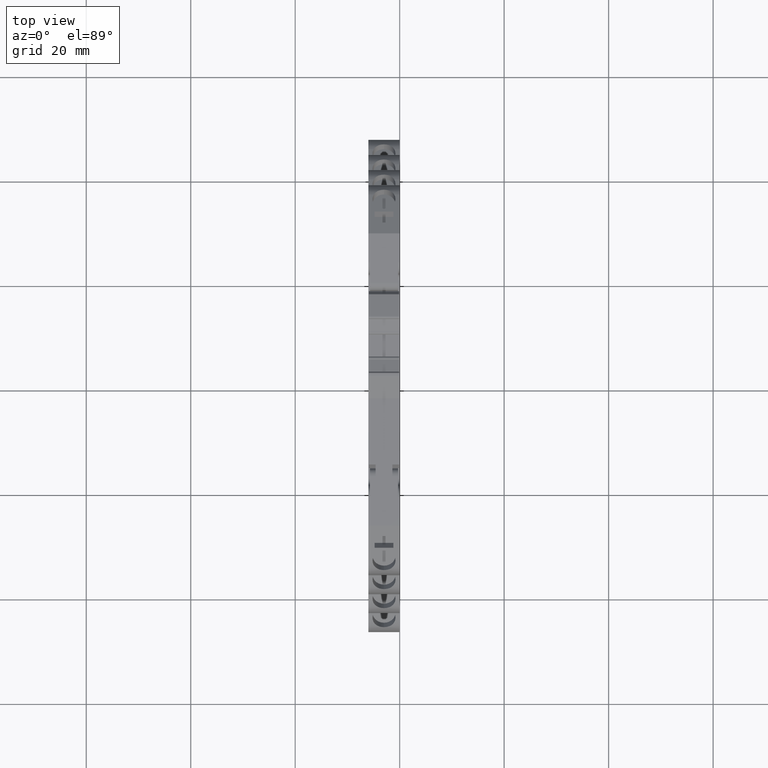
[diagram: clean part render]
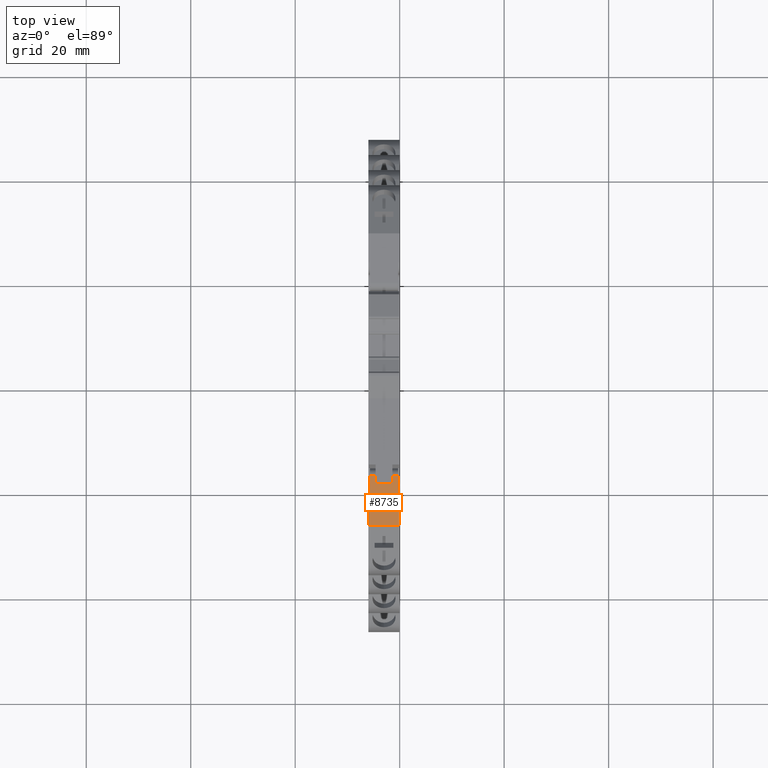
[diagram: same view with one face highlighted and labeled with its STEP entity id]
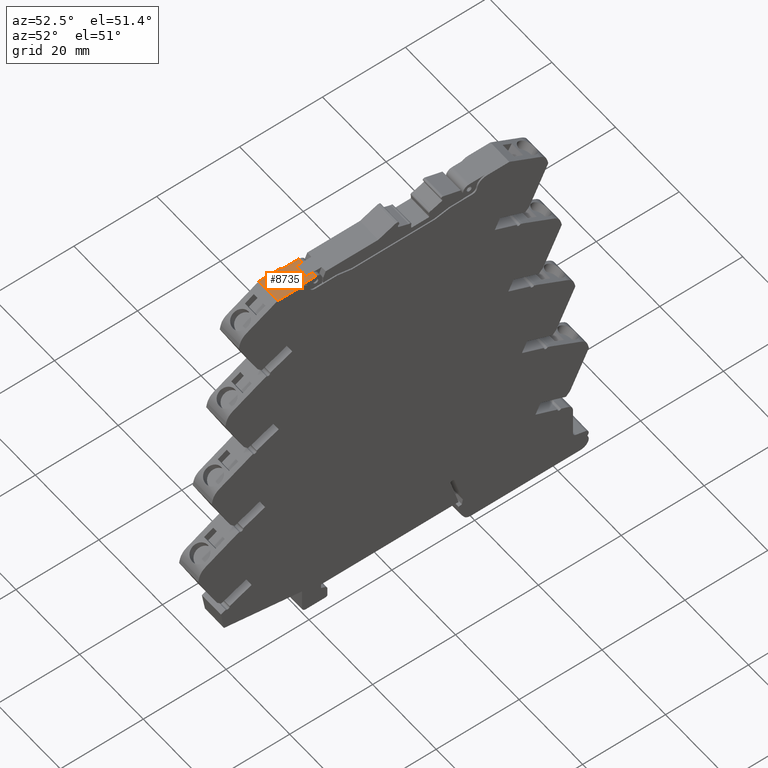
[diagram: same view with one face highlighted and labeled with its STEP entity id]
A machine part, top view. The second image highlights one B-rep face of the part: STEP entity #8735.
A second angle (auxiliary view) of the same face is appended — the face is thin or edge-on in the first view.
In plain terms, the highlighted planar face has unit normal (0, 0, -1).
Its self-contained STEP definition (entity closure, byte-faithful):
#4 = VECTOR ( 'NONE', #2063, 39.37007874015748143 ) ;
#26 = ORIENTED_EDGE ( 'NONE', *, *, #8177, .T. ) ;
#136 = EDGE_LOOP ( 'NONE', ( #7938, #1107, #9818, #3303, #3587, #3385, #26, #5512, #526, #2561, #1645, #9049 ) ) ;
#150 = EDGE_CURVE ( 'NONE', #2100, #6189, #8133, .T. ) ;
#285 = EDGE_CURVE ( 'NONE', #9698, #2100, #6065, .T. ) ;
#308 = CARTESIAN_POINT ( 'NONE',  ( -0.2234251968503937202, -0.8695884934271870259, 3.740177165354330757 ) ) ;
#426 = CARTESIAN_POINT ( 'NONE',  ( -0.2234251968503937202, -1.084904509595696842, 3.740177165354330757 ) ) ;
#452 = DIRECTION ( 'NONE',  ( -1.000000000000000000, -0.000000000000000000, -0.000000000000000000 ) ) ;
#518 = DIRECTION ( 'NONE',  ( 0.000000000000000000, -1.000000000000000000, 0.000000000000000000 ) ) ;
#526 = ORIENTED_EDGE ( 'NONE', *, *, #285, .F. ) ;
#539 = CARTESIAN_POINT ( 'NONE',  ( -0.2362204724409449064, -1.084904509595696842, 3.740177165354330757 ) ) ;
#587 = CARTESIAN_POINT ( 'NONE',  ( -0.2234251968503937202, -0.7123228346456693671, 3.740177165354330757 ) ) ;
#604 = CARTESIAN_POINT ( 'NONE',  ( 0.000000000000000000, -1.084904509595696842, 3.740177165354330757 ) ) ;
#933 = CARTESIAN_POINT ( 'NONE',  ( -0.2362204724409449064, -0.8695884935375591818, 3.740177165354330757 ) ) ;
#1041 = DIRECTION ( 'NONE',  ( 1.000000000000000000, 0.000000000000000000, 0.000000000000000000 ) ) ;
#1107 = ORIENTED_EDGE ( 'NONE', *, *, #5085, .F. ) ;
#1327 = VERTEX_POINT ( 'NONE', #9286 ) ;
#1357 = CARTESIAN_POINT ( 'NONE',  ( -0.01279527559055118092, -1.084904509595696842, 3.740177165354330757 ) ) ;
#1613 = VECTOR ( 'NONE', #2665, 39.37007874015748143 ) ;
#1645 = ORIENTED_EDGE ( 'NONE', *, *, #5849, .T. ) ;
#1669 = VECTOR ( 'NONE', #6688, 39.37007874015748143 ) ;
#1793 = CARTESIAN_POINT ( 'NONE',  ( -0.2362204724409449064, -0.8695884935375591818, 3.740177165354330757 ) ) ;
#1968 = VECTOR ( 'NONE', #9365, 39.37007874015748143 ) ;
#2063 = DIRECTION ( 'NONE',  ( -0.000000000000000000, 1.000000000000000000, -0.000000000000000000 ) ) ;
#2083 = EDGE_CURVE ( 'NONE', #5910, #2524, #9682, .T. ) ;
#2100 = VERTEX_POINT ( 'NONE', #2728 ) ;
#2338 = VERTEX_POINT ( 'NONE', #2366 ) ;
#2366 = CARTESIAN_POINT ( 'NONE',  ( -0.05511811023622047168, -0.7711023622047243897, 3.740177165354330757 ) ) ;
#2470 = VECTOR ( 'NONE', #8959, 39.37007874015748143 ) ;
#2524 = VERTEX_POINT ( 'NONE', #308 ) ;
#2551 = LINE ( 'NONE', #5740, #2470 ) ;
#2561 = ORIENTED_EDGE ( 'NONE', *, *, #4672, .F. ) ;
#2568 = LINE ( 'NONE', #6497, #1613 ) ;
#2600 = CARTESIAN_POINT ( 'NONE',  ( -0.1811023622047244208, 0.000000000000000000, 3.740177165354330757 ) ) ;
#2665 = DIRECTION ( 'NONE',  ( -0.000000000000000000, 1.000000000000000000, -0.000000000000000000 ) ) ;
#2728 = CARTESIAN_POINT ( 'NONE',  ( -0.01279527559055118092, -0.8695884934271870259, 3.740177165354330757 ) ) ;
#2808 = CARTESIAN_POINT ( 'NONE',  ( -0.2362204724409449064, -1.084904509595696842, 3.740177165354330757 ) ) ;
#2834 = VECTOR ( 'NONE', #1041, 39.37007874015748143 ) ;
#2959 = DIRECTION ( 'NONE',  ( -0.000000000000000000, 1.000000000000000000, -0.000000000000000000 ) ) ;
#3246 = CARTESIAN_POINT ( 'NONE',  ( -0.2362204724409449064, -0.8695884934271870259, 3.740177165354330757 ) ) ;
#3303 = ORIENTED_EDGE ( 'NONE', *, *, #2083, .F. ) ;
#3322 = VECTOR ( 'NONE', #2959, 39.37007874015748143 ) ;
#3385 = ORIENTED_EDGE ( 'NONE', *, *, #4950, .F. ) ;
#3587 = ORIENTED_EDGE ( 'NONE', *, *, #3591, .F. ) ;
#3591 = EDGE_CURVE ( 'NONE', #5409, #5910, #2568, .T. ) ;
#3688 = VERTEX_POINT ( 'NONE', #9779 ) ;
#3716 = DIRECTION ( 'NONE',  ( 0.000000000000000000, 0.000000000000000000, -1.000000000000000000 ) ) ;
#3792 = DIRECTION ( 'NONE',  ( 1.000000000000000000, 0.000000000000000000, 0.000000000000000000 ) ) ;
#3927 = LINE ( 'NONE', #7782, #5632 ) ;
#4038 = VERTEX_POINT ( 'NONE', #8236 ) ;
#4608 = DIRECTION ( 'NONE',  ( 1.000000000000000000, 0.000000000000000000, 0.000000000000000000 ) ) ;
#4672 = EDGE_CURVE ( 'NONE', #6614, #9698, #7137, .T. ) ;
#4679 = VECTOR ( 'NONE', #8200, 39.37007874015748143 ) ;
#4950 = EDGE_CURVE ( 'NONE', #1327, #5409, #7759, .T. ) ;
#5002 = CARTESIAN_POINT ( 'NONE',  ( -0.01279527559055118092, -0.7123228346456693671, 3.740177165354330757 ) ) ;
#5085 = EDGE_CURVE ( 'NONE', #9043, #3688, #9494, .T. ) ;
#5267 = EDGE_CURVE ( 'NONE', #4038, #2338, #2551, .T. ) ;
#5409 = VERTEX_POINT ( 'NONE', #7637 ) ;
#5512 = ORIENTED_EDGE ( 'NONE', *, *, #150, .F. ) ;
#5632 = VECTOR ( 'NONE', #7041, 39.37007874015748143 ) ;
#5690 = VECTOR ( 'NONE', #518, 39.37007874015748143 ) ;
#5740 = CARTESIAN_POINT ( 'NONE',  ( -0.2362204724409449064, -0.7711023622047243897, 3.740177165354330757 ) ) ;
#5849 = EDGE_CURVE ( 'NONE', #6614, #2338, #3927, .T. ) ;
#5910 = VERTEX_POINT ( 'NONE', #3246 ) ;
#6065 = LINE ( 'NONE', #1357, #5690 ) ;
#6085 = PLANE ( 'NONE',  #10244 ) ;
#6189 = VERTEX_POINT ( 'NONE', #7875 ) ;
#6223 = CARTESIAN_POINT ( 'NONE',  ( -0.2234251968503937202, -0.7123228346456693671, 3.740177165354330757 ) ) ;
#6497 = CARTESIAN_POINT ( 'NONE',  ( -0.2362204724409449064, 1.855790060789259899, 3.740177165354330757 ) ) ;
#6614 = VERTEX_POINT ( 'NONE', #9448 ) ;
#6688 = DIRECTION ( 'NONE',  ( 0.000000000000000000, -1.000000000000000000, 0.000000000000000000 ) ) ;
#6885 = FACE_OUTER_BOUND ( 'NONE', #136, .T. ) ;
#7041 = DIRECTION ( 'NONE',  ( 0.000000000000000000, -1.000000000000000000, 0.000000000000000000 ) ) ;
#7137 = LINE ( 'NONE', #587, #1968 ) ;
#7483 = LINE ( 'NONE', #2600, #1669 ) ;
#7637 = CARTESIAN_POINT ( 'NONE',  ( -0.2362204724409449064, -1.084904509595696842, 3.740177165354330757 ) ) ;
#7759 = LINE ( 'NONE', #2808, #8341 ) ;
#7779 = LINE ( 'NONE', #426, #4 ) ;
#7782 = CARTESIAN_POINT ( 'NONE',  ( -0.05511811023622047168, 0.000000000000000000, 3.740177165354330757 ) ) ;
#7848 = LINE ( 'NONE', #604, #3322 ) ;
#7875 = CARTESIAN_POINT ( 'NONE',  ( 0.000000000000000000, -0.8695884934271870259, 3.740177165354330757 ) ) ;
#7938 = ORIENTED_EDGE ( 'NONE', *, *, #8122, .F. ) ;
#8122 = EDGE_CURVE ( 'NONE', #3688, #4038, #7483, .T. ) ;
#8133 = LINE ( 'NONE', #933, #2834 ) ;
#8177 = EDGE_CURVE ( 'NONE', #1327, #6189, #7848, .T. ) ;
#8200 = DIRECTION ( 'NONE',  ( 1.000000000000000000, 0.000000000000000000, 0.000000000000000000 ) ) ;
#8236 = CARTESIAN_POINT ( 'NONE',  ( -0.1811023622047244208, -0.7711023622047243897, 3.740177165354330757 ) ) ;
#8341 = VECTOR ( 'NONE', #452, 39.37007874015748143 ) ;
#8694 = EDGE_CURVE ( 'NONE', #2524, #9043, #7779, .T. ) ;
#8735 = ADVANCED_FACE ( 'NONE', ( #6885 ), #6085, .F. ) ;
#8959 = DIRECTION ( 'NONE',  ( 1.000000000000000000, 0.000000000000000000, 0.000000000000000000 ) ) ;
#9043 = VERTEX_POINT ( 'NONE', #10199 ) ;
#9049 = ORIENTED_EDGE ( 'NONE', *, *, #5267, .F. ) ;
#9286 = CARTESIAN_POINT ( 'NONE',  ( 0.000000000000000000, -1.084904509595696842, 3.740177165354330757 ) ) ;
#9365 = DIRECTION ( 'NONE',  ( 1.000000000000000000, 0.000000000000000000, 0.000000000000000000 ) ) ;
#9448 = CARTESIAN_POINT ( 'NONE',  ( -0.05511811023622047168, -0.7123228346456693671, 3.740177165354330757 ) ) ;
#9494 = LINE ( 'NONE', #6223, #9531 ) ;
#9531 = VECTOR ( 'NONE', #3792, 39.37007874015748143 ) ;
#9682 = LINE ( 'NONE', #1793, #4679 ) ;
#9698 = VERTEX_POINT ( 'NONE', #5002 ) ;
#9779 = CARTESIAN_POINT ( 'NONE',  ( -0.1811023622047244208, -0.7123228346456693671, 3.740177165354330757 ) ) ;
#9818 = ORIENTED_EDGE ( 'NONE', *, *, #8694, .F. ) ;
#10199 = CARTESIAN_POINT ( 'NONE',  ( -0.2234251968503937202, -0.7123228346456693671, 3.740177165354330757 ) ) ;
#10244 = AXIS2_PLACEMENT_3D ( 'NONE', #539, #3716, #4608 ) ;